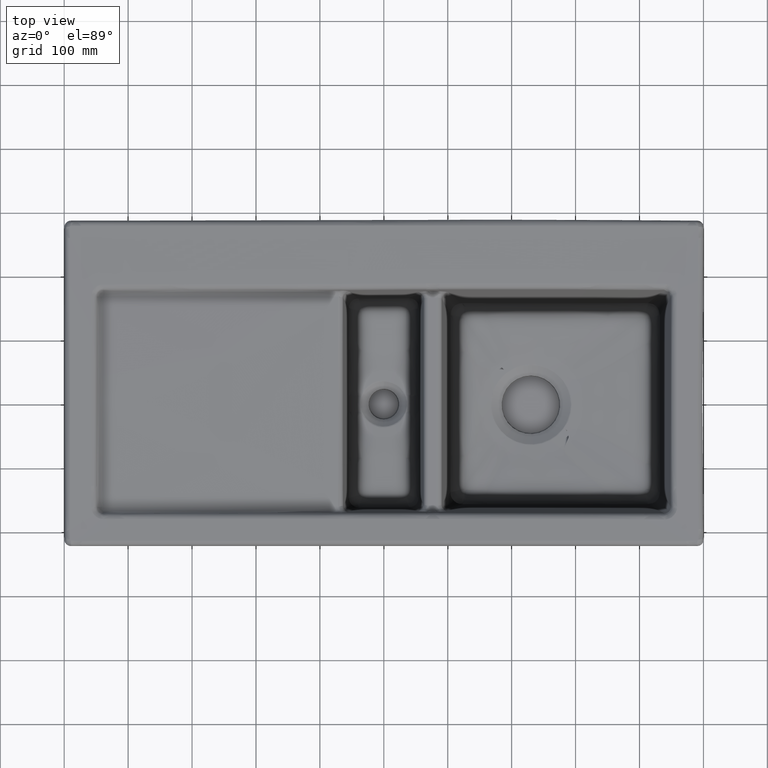
[diagram: clean part render]
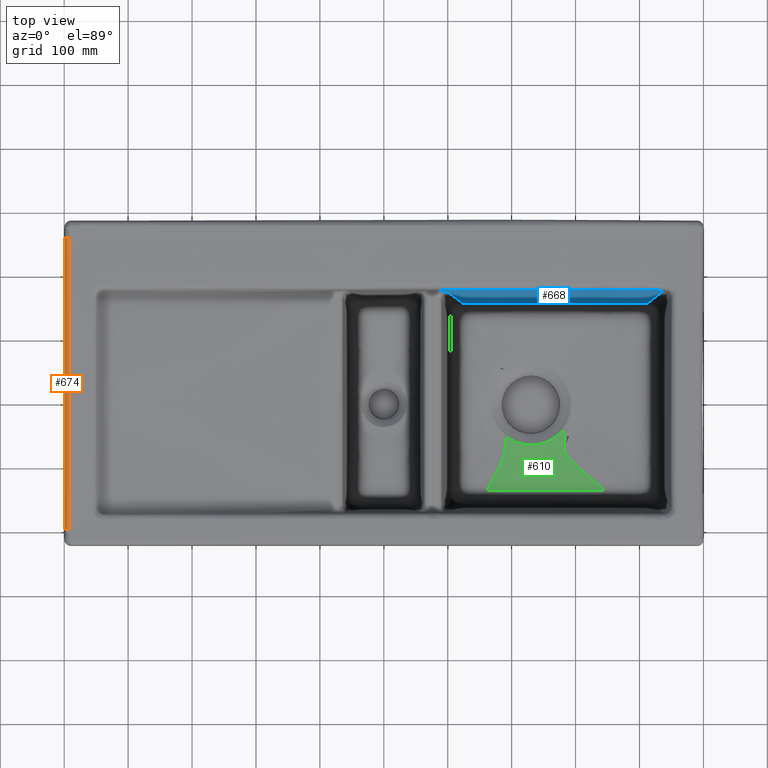
[diagram: same view with three faces highlighted in distinct colors, each labeled with its STEP entity id]
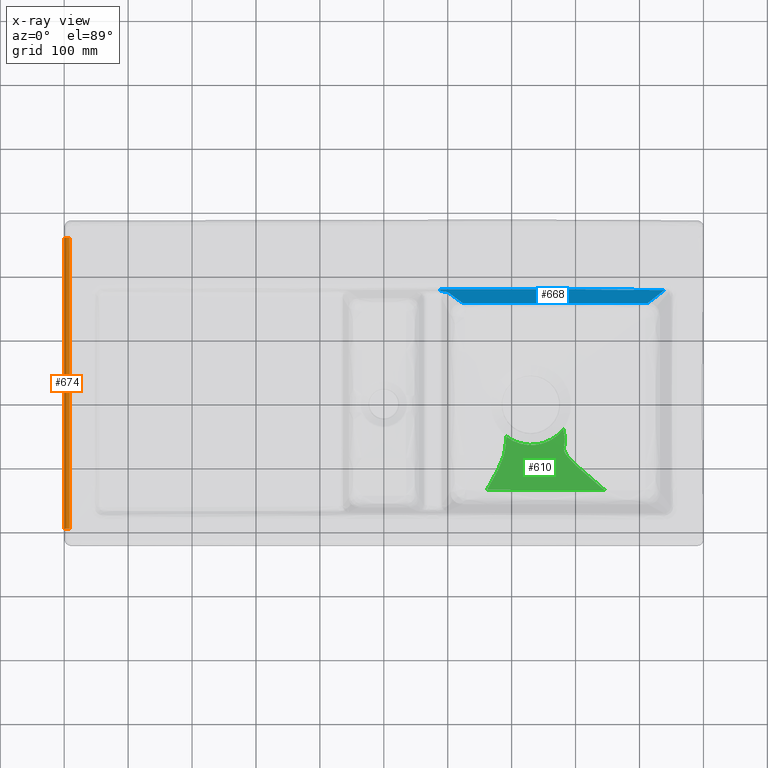
[diagram: x-ray of the same camera — body ghosted, the three highlighted faces saturated]
A machine part, top view with three faces highlighted in distinct colors.
The next image is the same camera in x-ray (body ghosted, the three faces saturated) — at least one of them is partly hidden behind the body in this view.
Their STEP definitions:

[orange] entity #674 — the highlighted face is a freeform B-spline surface patch.
#294=(
BOUNDED_CURVE()
B_SPLINE_CURVE(2,(#12816,#12817,#12818),.UNSPECIFIED.,.F.,.F.)
B_SPLINE_CURVE_WITH_KNOTS((3,3),(0.,1.),.UNSPECIFIED.)
CURVE()
GEOMETRIC_REPRESENTATION_ITEM()
RATIONAL_B_SPLINE_CURVE((1.,0.718519209859785,1.))
REPRESENTATION_ITEM('')
);
#428=(
BOUNDED_SURFACE()
B_SPLINE_SURFACE(3,2,((#12846,#12847,#12848),(#12849,#12850,#12851),(#12852,
#12853,#12854),(#12855,#12856,#12857),(#12858,#12859,#12860),(#12861,#12862,
#12863),(#12864,#12865,#12866),(#12867,#12868,#12869),(#12870,#12871,#12872),
(#12873,#12874,#12875),(#12876,#12877,#12878),(#12879,#12880,#12881),(#12882,
#12883,#12884),(#12885,#12886,#12887),(#12888,#12889,#12890),(#12891,#12892,
#12893),(#12894,#12895,#12896),(#12897,#12898,#12899),(#12900,#12901,#12902),
(#12903,#12904,#12905),(#12906,#12907,#12908),(#12909,#12910,#12911)),
 .UNSPECIFIED.,.F.,.F.,.F.)
B_SPLINE_SURFACE_WITH_KNOTS((4,2,2,2,2,2,2,2,2,2,4),(3,3),(0.,0.124999834745652,
0.187499752118478,0.249999669491304,0.374999504236955,0.499999338982607,
0.749999008473911,0.874998843219562,0.937498760592388,0.999998677965214,
1.),(0.,1.),.UNSPECIFIED.)
GEOMETRIC_REPRESENTATION_ITEM()
RATIONAL_B_SPLINE_SURFACE(((1.,0.718491273654868,1.),(1.,0.718491273654868,
1.),(1.,0.718491326263846,1.),(1.,0.718490963561792,1.),(1.,0.718491325860311,
1.),(1.,0.718492348168477,1.),(1.,0.718492450613231,1.),(1.,0.718492563293483,
1.),(1.,0.718491728544634,1.),(1.,0.718491728544634,1.),(1.,0.718491270514074,
1.),(1.,0.718491504677982,1.),(1.,0.718492081432788,1.),(1.,0.718491710619861,
1.),(1.,0.718492849235308,1.),(1.,0.718492646884107,1.),(1.,0.718491990097577,
1.),(1.,0.718491458207917,1.),(1.,0.71849124643056,1.),(1.,0.71849124643056,
1.),(1.,0.71849124643056,1.),(1.,0.71849124643056,1.)))
REPRESENTATION_ITEM('')
SURFACE()
);
#674=ADVANCED_FACE('',(#1186),#428,.T.);
#1186=FACE_OUTER_BOUND('',#1589,.T.);
#1589=EDGE_LOOP('',(#2332,#2333,#2334,#2335));
#2332=ORIENTED_EDGE('',*,*,#4677,.F.);
#2333=ORIENTED_EDGE('',*,*,#4465,.T.);
#2334=ORIENTED_EDGE('',*,*,#4678,.F.);
#2335=ORIENTED_EDGE('',*,*,#4679,.F.);
#3873=VERTEX_POINT('',#7394);
#3874=VERTEX_POINT('',#7409);
#4004=VERTEX_POINT('',#12819);
#4005=VERTEX_POINT('',#12826);
#4465=EDGE_CURVE('',#3874,#3873,#5435,.T.);
#4677=EDGE_CURVE('',#3874,#4004,#294,.T.);
#4678=EDGE_CURVE('',#4005,#3873,#5578,.T.);
#4679=EDGE_CURVE('',#4004,#4005,#5579,.T.);
#5435=B_SPLINE_CURVE_WITH_KNOTS('',3,(#7395,#7396,#7397,#7398,#7399,#7400,
#7401,#7402,#7403,#7404,#7405,#7406,#7407,#7408),.UNSPECIFIED.,.F.,.F.,
(4,2,2,2,2,2,4),(0.,0.125,0.25,0.5,0.75,0.875,1.),.UNSPECIFIED.);
#5578=B_SPLINE_CURVE_WITH_KNOTS('',3,(#12820,#12821,#12822,#12823,#12824,
#12825),.UNSPECIFIED.,.F.,.F.,(4,2,4),(0.,0.5,1.),.UNSPECIFIED.);
#5579=B_SPLINE_CURVE_WITH_KNOTS('',3,(#12827,#12828,#12829,#12830,#12831,
#12832,#12833,#12834,#12835,#12836,#12837,#12838,#12839,#12840,#12841,#12842,
#12843,#12844,#12845),.UNSPECIFIED.,.F.,.F.,(4,1,1,1,1,1,1,1,1,1,1,1,1,
1,1,1,4),(0.,0.00992673134062024,0.0798412857920444,0.114798563017756,0.149755840243468,
0.184713117469181,0.219670394694893,0.254627671920605,0.289584949146317,
0.359499503597741,0.499328612500589,0.639157721403437,0.778986830306285,
0.848901384757709,0.918815939209134,0.988730493660558,1.),.UNSPECIFIED.);
#7394=CARTESIAN_POINT('',(-499.490523939332,-197.877158029754,-7.74464608588212));
#7395=CARTESIAN_POINT('',(-499.490662644879,257.276879444351,-7.74802082457675));
#7396=CARTESIAN_POINT('',(-499.490557946787,238.310739726053,-7.75052910161486));
#7397=CARTESIAN_POINT('',(-499.490764973003,219.341422631459,-7.78400338763013));
#7398=CARTESIAN_POINT('',(-499.491023584575,181.412094810959,-7.73701500985903));
#7399=CARTESIAN_POINT('',(-499.490853120724,162.453891850324,-7.43309294048505));
#7400=CARTESIAN_POINT('',(-499.489720525783,105.565500300128,-6.36049279736896));
#7401=CARTESIAN_POINT('',(-499.490798906779,67.6313528260689,-5.94151118589915));
#7402=CARTESIAN_POINT('',(-499.490604875534,-8.23436523889592,-5.65615613731529));
#7403=CARTESIAN_POINT('',(-499.490199719775,-46.1656520773044,-5.80172297560583));
#7404=CARTESIAN_POINT('',(-499.490839748835,-103.060344052101,-6.42719146859272));
#7405=CARTESIAN_POINT('',(-499.49025541858,-122.026700742078,-6.7115219189677));
#7406=CARTESIAN_POINT('',(-499.490673220746,-159.952353274149,-7.43478908914426));
#7407=CARTESIAN_POINT('',(-499.490995432697,-178.91127564829,-7.71829056622411));
#7408=CARTESIAN_POINT('',(-499.490869244957,-197.8742849488,-7.75118662538315));
#7409=CARTESIAN_POINT('',(-499.490625882287,257.276879423655,-7.74732115855321));
#12816=CARTESIAN_POINT('',(-499.49061268677,257.277721483377,-7.747069234503));
#12817=CARTESIAN_POINT('',(-499.084523692586,257.276817899981,-0.0136082921561689));
#12818=CARTESIAN_POINT('',(-491.341950609959,257.276881456874,-0.168169981463993));
#12819=CARTESIAN_POINT('',(-491.341824130181,257.276168588387,-0.168738389311537));
#12820=CARTESIAN_POINT('',(-491.346120353617,-197.897216688213,-0.159258375603653));
#12821=CARTESIAN_POINT('',(-493.199948489024,-197.897253830826,-0.123316404977103));
#12822=CARTESIAN_POINT('',(-495.371728723853,-197.895539339374,-0.831471662155751));
#12823=CARTESIAN_POINT('',(-498.53072453324,-197.888570614098,-3.77127183398765));
#12824=CARTESIAN_POINT('',(-499.392958450113,-197.883592089041,-5.88660728800553));
#12825=CARTESIAN_POINT('',(-499.4901882801,-197.879250924587,-7.73822768557968));
#12826=CARTESIAN_POINT('',(-491.344431794745,-197.892950516002,-0.165969092101436));
#12827=CARTESIAN_POINT('',(-491.341551171611,257.276168640151,-0.169130136751979));
#12828=CARTESIAN_POINT('',(-491.341551171609,255.769983929444,-0.169329157814132));
#12829=CARTESIAN_POINT('',(-491.341551171597,243.655652584315,-0.170858635116447));
#12830=CARTESIAN_POINT('',(-491.34155117158,226.237264295744,-0.171454007815632));
#12831=CARTESIAN_POINT('',(-491.341551171571,205.020818796165,-0.191587447653963));
#12832=CARTESIAN_POINT('',(-491.341551171462,189.108646415843,-0.167172879021217));
#12833=CARTESIAN_POINT('',(-491.341551171103,173.197146862428,-0.019574286955598));
#12834=CARTESIAN_POINT('',(-491.341551170822,157.286909367168,0.239443528504221));
#12835=CARTESIAN_POINT('',(-491.341551170822,141.377646873107,0.548070484816735));
#12836=CARTESIAN_POINT('',(-491.341551170894,120.164848013546,0.93002937147622));
#12837=CARTESIAN_POINT('',(-491.341551170861,83.0397479595823,1.44487937968049));
#12838=CARTESIAN_POINT('',(-491.341551170878,30.0002851799723,1.86743018917233));
#12839=CARTESIAN_POINT('',(-491.341551170874,-33.6491884007893,1.84373352476653));
#12840=CARTESIAN_POINT('',(-491.341551170874,-86.6882946847078,1.37915510754914));
#12841=CARTESIAN_POINT('',(-491.341551170874,-129.116557395504,0.763936945797052));
#12842=CARTESIAN_POINT('',(-491.341551170879,-160.93417178035,0.0907467520447583));
#12843=CARTESIAN_POINT('',(-491.341551170857,-183.859513415479,-0.138201382956502));
#12844=CARTESIAN_POINT('',(-491.341551170838,-196.177462703649,-0.169345157878074));
#12845=CARTESIAN_POINT('',(-491.341551170836,-197.887375061552,-0.172310483004435));
#12846=CARTESIAN_POINT('',(-499.490662628943,257.277780321535,-7.7480203072633));
#12847=CARTESIAN_POINT('',(-499.084558434059,257.276759789778,-0.014269913390417));
#12848=CARTESIAN_POINT('',(-491.341701333642,257.276822995878,-0.169127047046826));
#12849=CARTESIAN_POINT('',(-499.490557919071,238.311295082025,-7.75052764939552));
#12850=CARTESIAN_POINT('',(-499.084452941921,238.322888452652,-0.0167765418926636));
#12851=CARTESIAN_POINT('',(-491.341596745907,238.322731468953,-0.171633686905703));
#12852=CARTESIAN_POINT('',(-499.490764951036,219.341632223773,-7.7840035214331));
#12853=CARTESIAN_POINT('',(-499.084658848807,219.314266996593,-0.0502144978587324));
#12854=CARTESIAN_POINT('',(-491.341802937585,219.314669755991,-0.205073285410044));
#12855=CARTESIAN_POINT('',(-499.490958912692,190.894118001235,-7.74876118742037));
#12856=CARTESIAN_POINT('',(-499.084861826923,190.922167317126,-0.0150322486350976));
#12857=CARTESIAN_POINT('',(-491.341997806718,190.921603892876,-0.169888245775146));
#12858=CARTESIAN_POINT('',(-499.49084980718,181.413755585499,-7.68996544144417));
#12859=CARTESIAN_POINT('',(-499.084749948888,181.485591121793,0.0435120188946245));
#12860=CARTESIAN_POINT('',(-491.34189390338,181.483955681021,-0.111331810786969));
#12861=CARTESIAN_POINT('',(-499.490984416219,162.452461183634,-7.43815466287057));
#12862=CARTESIAN_POINT('',(-499.084879404955,162.586022212583,0.294480028626634));
#12863=CARTESIAN_POINT('',(-491.342045803036,162.583421777709,0.139666316879392));
#12864=CARTESIAN_POINT('',(-499.490664303256,152.971493445922,-7.25430658122908));
#12865=CARTESIAN_POINT('',(-499.084562509418,153.120769324063,0.477976062087351));
#12866=CARTESIAN_POINT('',(-491.341732730053,153.118136831941,0.323170342672711));
#12867=CARTESIAN_POINT('',(-499.490098027954,124.526779178611,-6.71799799247075));
#12868=CARTESIAN_POINT('',(-499.083994683825,124.665620497486,1.01448383189293));
#12869=CARTESIAN_POINT('',(-491.341162459665,124.66258865822,0.859681869797598));
#12870=CARTESIAN_POINT('',(-499.490763996072,105.560572584235,-6.43090981116269));
#12871=CARTESIAN_POINT('',(-499.084663386831,105.664189148102,1.30215781869248));
#12872=CARTESIAN_POINT('',(-491.341816441091,105.66217956943,1.14732704076778));
#12873=CARTESIAN_POINT('',(-499.490651565228,67.6290024755083,-6.01227293820713));
#12874=CARTESIAN_POINT('',(-499.084543443847,67.6960837394075,1.72119810588737));
#12875=CARTESIAN_POINT('',(-491.34169607799,67.6947213290928,1.56635221251205));
#12876=CARTESIAN_POINT('',(-499.490750387451,48.6620222745455,-5.87015303653939));
#12877=CARTESIAN_POINT('',(-499.084645507065,48.7103470772913,1.86346692249869));
#12878=CARTESIAN_POINT('',(-491.341791763231,48.7093580239642,1.70861496726945));
#12879=CARTESIAN_POINT('',(-499.490604810924,-8.23830309023901,-5.6561570842841));
#12880=CARTESIAN_POINT('',(-499.084500528167,-8.24768002095946,2.07768514947916));
#12881=CARTESIAN_POINT('',(-491.341641655052,-8.24740202529694,1.92282412677421));
#12882=CARTESIAN_POINT('',(-499.490199673157,-46.1702809985636,-5.80174808642345));
#12883=CARTESIAN_POINT('',(-499.084079894895,-46.2193106138724,1.93191188111168));
#12884=CARTESIAN_POINT('',(-491.341240759052,-46.2183360098821,1.77705829286241));
#12885=CARTESIAN_POINT('',(-499.490839830557,-103.066009566372,-6.4272660459157));
#12886=CARTESIAN_POINT('',(-499.084739723294,-103.169037941273,1.30580954740364));
#12887=CARTESIAN_POINT('',(-491.341892091462,-103.167092511206,1.15097774294627));
#12888=CARTESIAN_POINT('',(-499.490255286595,-122.032712060741,-6.71161887437665));
#12889=CARTESIAN_POINT('',(-499.084146147202,-122.180546672686,1.02068307963497));
#12890=CARTESIAN_POINT('',(-491.341323575703,-122.177388034768,0.865887004438983));
#12891=CARTESIAN_POINT('',(-499.490568909908,-150.477468619334,-7.25410504812292));
#12892=CARTESIAN_POINT('',(-499.084463819101,-150.624759883994,0.478211996837553));
#12893=CARTESIAN_POINT('',(-491.341636749721,-150.622036057781,0.323407335345145));
#12894=CARTESIAN_POINT('',(-499.490937486872,-159.958155384587,-7.43062544525742));
#12895=CARTESIAN_POINT('',(-499.084836925656,-160.081463519683,0.302172262701861));
#12896=CARTESIAN_POINT('',(-491.341995409771,-160.079003058604,0.147353081290356));
#12897=CARTESIAN_POINT('',(-499.4907714596,-178.919664971169,-7.66749604450895));
#12898=CARTESIAN_POINT('',(-499.084668769415,-178.989565881878,0.0659805735961848));
#12899=CARTESIAN_POINT('',(-491.341815672621,-178.988015428412,-0.088864032453197));
#12900=CARTESIAN_POINT('',(-499.490932386302,-188.399999661843,-7.7347771488538));
#12901=CARTESIAN_POINT('',(-499.084829619765,-188.439975112472,-0.0010837748255572));
#12902=CARTESIAN_POINT('',(-491.341972028945,-188.439480123172,-0.155939131894444));
#12903=CARTESIAN_POINT('',(-499.49086917347,-197.881878353643,-7.75119938897164));
#12904=CARTESIAN_POINT('',(-499.084765782721,-197.895270288727,-0.0174598730207946));
#12905=CARTESIAN_POINT('',(-491.341908071285,-197.894950489441,-0.172316473404415));
#12906=CARTESIAN_POINT('',(-499.490869172133,-197.882078915641,-7.75119973633711));
#12907=CARTESIAN_POINT('',(-499.08476578137,-197.895470288427,-0.0174602194102691));
#12908=CARTESIAN_POINT('',(-491.341908069932,-197.895150492846,-0.172316819820188));
#12909=CARTESIAN_POINT('',(-499.490869170796,-197.88227947764,-7.75120008370258));
#12910=CARTESIAN_POINT('',(-499.08476578002,-197.895670288127,-0.0174605657997435));
#12911=CARTESIAN_POINT('',(-491.341908068579,-197.895350496252,-0.172317166235962));

[blue] entity #668 — the highlighted face is a freeform B-spline surface patch.
#668=ADVANCED_FACE('',(#1180),#997,.T.);
#997=B_SPLINE_SURFACE_WITH_KNOTS('',3,1,((#12449,#12450),(#12451,#12452),
(#12453,#12454),(#12455,#12456),(#12457,#12458),(#12459,#12460),(#12461,
#12462),(#12463,#12464),(#12465,#12466),(#12467,#12468),(#12469,#12470),
(#12471,#12472),(#12473,#12474),(#12475,#12476),(#12477,#12478),(#12479,
#12480),(#12481,#12482),(#12483,#12484),(#12485,#12486)),.UNSPECIFIED.,
 .F.,.F.,.F.,(4,1,1,1,1,1,1,1,1,1,1,1,1,1,1,1,4),(2,2),(0.,0.0625,0.125,
0.1875,0.25,0.3125,0.375,0.4375,0.5,0.5625,0.625,0.6875,0.75,0.8125,0.875,
0.9375,1.),(0.,1.),.UNSPECIFIED.);
#1180=FACE_OUTER_BOUND('',#1583,.T.);
#1583=EDGE_LOOP('',(#2298,#2299,#2300,#2301,#2302,#2303,#2304,#2305,#2306));
#2298=ORIENTED_EDGE('',*,*,#4593,.T.);
#2299=ORIENTED_EDGE('',*,*,#4650,.T.);
#2300=ORIENTED_EDGE('',*,*,#4662,.F.);
#2301=ORIENTED_EDGE('',*,*,#4663,.F.);
#2302=ORIENTED_EDGE('',*,*,#4664,.F.);
#2303=ORIENTED_EDGE('',*,*,#4603,.T.);
#2304=ORIENTED_EDGE('',*,*,#4595,.T.);
#2305=ORIENTED_EDGE('',*,*,#4597,.T.);
#2306=ORIENTED_EDGE('',*,*,#4598,.T.);
#3926=VERTEX_POINT('',#9807);
#3929=VERTEX_POINT('',#9971);
#3956=VERTEX_POINT('',#10866);
#3957=VERTEX_POINT('',#10916);
#3958=VERTEX_POINT('',#10942);
#3961=VERTEX_POINT('',#11021);
#3990=VERTEX_POINT('',#12169);
#3996=VERTEX_POINT('',#12395);
#3997=VERTEX_POINT('',#12400);
#4593=EDGE_CURVE('',#3926,#3956,#5511,.T.);
#4595=EDGE_CURVE('',#3929,#3957,#5512,.T.);
#4597=EDGE_CURVE('',#3957,#3958,#5513,.T.);
#4598=EDGE_CURVE('',#3958,#3926,#5514,.T.);
#4603=EDGE_CURVE('',#3961,#3929,#5519,.T.);
#4650=EDGE_CURVE('',#3956,#3990,#5556,.T.);
#4662=EDGE_CURVE('',#3996,#3990,#5564,.T.);
#4663=EDGE_CURVE('',#3997,#3996,#5565,.T.);
#4664=EDGE_CURVE('',#3961,#3997,#5566,.T.);
#5511=B_SPLINE_CURVE_WITH_KNOTS('',3,(#10867,#10868,#10869,#10870),
 .UNSPECIFIED.,.F.,.F.,(4,4),(0.,1.),.UNSPECIFIED.);
#5512=B_SPLINE_CURVE_WITH_KNOTS('',3,(#10917,#10918,#10919,#10920),
 .UNSPECIFIED.,.F.,.F.,(4,4),(0.,1.),.UNSPECIFIED.);
#5513=B_SPLINE_CURVE_WITH_KNOTS('',3,(#10943,#10944,#10945,#10946),
 .UNSPECIFIED.,.F.,.F.,(4,4),(0.,1.),.UNSPECIFIED.);
#5514=B_SPLINE_CURVE_WITH_KNOTS('',3,(#10965,#10966,#10967,#10968),
 .UNSPECIFIED.,.F.,.F.,(4,4),(0.,1.),.UNSPECIFIED.);
#5519=B_SPLINE_CURVE_WITH_KNOTS('',3,(#11022,#11023,#11024,#11025),
 .UNSPECIFIED.,.F.,.F.,(4,4),(0.,1.),.UNSPECIFIED.);
#5556=B_SPLINE_CURVE_WITH_KNOTS('',3,(#12165,#12166,#12167,#12168),
 .UNSPECIFIED.,.F.,.F.,(4,4),(0.,1.),.UNSPECIFIED.);
#5564=B_SPLINE_CURVE_WITH_KNOTS('',3,(#12391,#12392,#12393,#12394),
 .UNSPECIFIED.,.F.,.F.,(4,4),(0.,1.),.UNSPECIFIED.);
#5565=B_SPLINE_CURVE_WITH_KNOTS('',3,(#12396,#12397,#12398,#12399),
 .UNSPECIFIED.,.F.,.F.,(4,4),(0.,1.),.UNSPECIFIED.);
#5566=B_SPLINE_CURVE_WITH_KNOTS('',3,(#12401,#12402,#12403,#12404,#12405,
#12406,#12407,#12408,#12409,#12410,#12411,#12412,#12413,#12414,#12415,#12416,
#12417,#12418,#12419,#12420,#12421,#12422,#12423,#12424,#12425,#12426,#12427,
#12428,#12429,#12430,#12431,#12432,#12433,#12434,#12435,#12436,#12437,#12438,
#12439,#12440,#12441,#12442,#12443,#12444,#12445,#12446,#12447,#12448),
 .UNSPECIFIED.,.F.,.F.,(4,2,2,2,2,2,2,2,2,2,2,2,2,2,2,2,2,2,2,2,2,2,2,4),
(0.,0.124999999999993,0.18749999999999,0.218749999999989,0.249999999999988,
0.281249999999987,0.296874999999986,0.312499999999986,0.374999999999985,
0.406249999999986,0.437499999999986,0.499999999999987,0.562499999999987,
0.593749999999988,0.624999999999989,0.640624999999988,0.656249999999986,
0.687499999999985,0.749999999999984,0.812499999999983,0.843749999999983,
0.859374999999983,0.874999999999982,1.),.UNSPECIFIED.);
#9807=CARTESIAN_POINT('',(413.086523079114,158.501561425455,-173.14523676866));
#9971=CARTESIAN_POINT('',(123.010906751173,158.608113742221,-173.145373030802));
#10866=CARTESIAN_POINT('',(438.77967093676,175.774046914216,-10.1298207856494));
#10867=CARTESIAN_POINT('',(413.084544529992,158.501600718384,-173.144917823408));
#10868=CARTESIAN_POINT('',(420.859853562355,163.611497899342,-125.540985442557));
#10869=CARTESIAN_POINT('',(429.424859438646,169.376703268797,-71.2353139395205));
#10870=CARTESIAN_POINT('',(438.779423652955,175.774050100017,-10.1298147586572));
#10916=CARTESIAN_POINT('',(160.544730773734,158.616306277772,-173.145335691906));
#10917=CARTESIAN_POINT('',(123.010915786735,158.608109030604,-173.145422133927));
#10918=CARTESIAN_POINT('',(135.522188159824,158.611876708313,-173.145463698863));
#10919=CARTESIAN_POINT('',(148.033460313628,158.614610680013,-173.145453957226));
#10920=CARTESIAN_POINT('',(160.544730773734,158.616306277772,-173.145335691906));
#10942=CARTESIAN_POINT('',(350.040070270705,158.560941991251,-173.145304157733));
#10943=CARTESIAN_POINT('',(160.544730773734,158.616306277772,-173.145335691906));
#10944=CARTESIAN_POINT('',(223.709963134361,158.623976414063,-173.152569902232));
#10945=CARTESIAN_POINT('',(286.875206814576,158.60917850267,-173.166978607762));
#10946=CARTESIAN_POINT('',(350.040070270705,158.560941991251,-173.145304157733));
#10965=CARTESIAN_POINT('',(350.040070270705,158.560941991251,-173.145304157733));
#10966=CARTESIAN_POINT('',(371.054952548735,158.543319535149,-173.15229927181));
#10967=CARTESIAN_POINT('',(392.06978016924,158.521671497694,-173.153664168774));
#10968=CARTESIAN_POINT('',(413.084486993694,158.501562878879,-173.145270336811));
#11021=CARTESIAN_POINT('',(100.81876774461,172.815880812839,-47.1632404752883));
#11022=CARTESIAN_POINT('',(100.818767889005,172.815833265383,-47.1632351101825));
#11023=CARTESIAN_POINT('',(108.556834836456,167.943751210028,-90.5497191167642));
#11024=CARTESIAN_POINT('',(115.954121314038,163.204268242665,-132.541735719003));
#11025=CARTESIAN_POINT('',(123.010900043209,158.608119284527,-173.14533154806));
#12165=CARTESIAN_POINT('',(438.779423649165,175.774050097424,-10.1298147834177));
#12166=CARTESIAN_POINT('',(394.34012611865,176.118915928887,-10.7652576563605));
#12167=CARTESIAN_POINT('',(349.894399916262,176.608878358694,-10.8677577410836));
#12168=CARTESIAN_POINT('',(305.448378930031,176.825082614632,-10.8657744673134));
#12169=CARTESIAN_POINT('',(305.448378898183,176.825076428844,-10.8658138527811));
#12391=CARTESIAN_POINT('',(87.0180990452281,176.85517485583,-10.864470908048));
#12392=CARTESIAN_POINT('',(159.828222165262,177.177075186623,-10.8478281816188));
#12393=CARTESIAN_POINT('',(232.641714811181,177.180969260864,-10.8471734297955));
#12394=CARTESIAN_POINT('',(305.448163920574,176.825067489113,-10.8659183660583));
#12395=CARTESIAN_POINT('',(87.018101641561,176.855087493183,-10.8652473979019));
#12396=CARTESIAN_POINT('',(89.280675230933,174.443061073538,-32.3777516894848));
#12397=CARTESIAN_POINT('',(88.526531653918,175.24744188922,-25.2073733651297));
#12398=CARTESIAN_POINT('',(87.7723664283987,176.05145590276,-18.0365350210081));
#12399=CARTESIAN_POINT('',(87.0181796229438,176.855089002086,-10.8652370325287));
#12400=CARTESIAN_POINT('',(89.2806643060453,174.443065585139,-32.3777785230237));
#12401=CARTESIAN_POINT('',(100.818767600283,172.8159283603,-47.1632458403535));
#12402=CARTESIAN_POINT('',(100.687552208763,172.898532695504,-46.427651665652));
#12403=CARTESIAN_POINT('',(100.507794647532,172.985326726639,-45.6535560241946));
#12404=CARTESIAN_POINT('',(100.144708927316,173.120220265831,-44.4479466504638));
#12405=CARTESIAN_POINT('',(100.008093668895,173.165961661294,-44.038725444913));
#12406=CARTESIAN_POINT('',(99.7771216662997,173.23547200674,-43.4161294325813));
#12407=CARTESIAN_POINT('',(99.6957888525566,173.258791302523,-43.2071413085613));
#12408=CARTESIAN_POINT('',(99.5239881200379,173.305677127276,-42.7866874979247));
#12409=CARTESIAN_POINT('',(99.415783357485,173.333649321679,-42.5356626955831));
#12410=CARTESIAN_POINT('',(99.2607323976081,173.372162499914,-42.1898472123784));
#12411=CARTESIAN_POINT('',(99.1615418797645,173.396266932203,-41.9733437554752));
#12412=CARTESIAN_POINT('',(98.9733804809804,173.439294358939,-41.5865208221323));
#12413=CARTESIAN_POINT('',(98.9040689111839,173.454779869471,-41.4472527416099));
#12414=CARTESIAN_POINT('',(98.750783754126,173.487941280977,-41.1488595894025));
#12415=CARTESIAN_POINT('',(98.6477514430312,173.509487273223,-40.9548723867159));
#12416=CARTESIAN_POINT('',(98.2822863475742,173.583696372765,-40.2863891478428));
#12417=CARTESIAN_POINT('',(98.0558692215426,173.62401248986,-39.9222929709993));
#12418=CARTESIAN_POINT('',(97.7678754576026,173.673328821287,-39.4765344337347));
#12419=CARTESIAN_POINT('',(97.6693127152303,173.6896506726,-39.3288946845837));
#12420=CARTESIAN_POINT('',(97.4670581629287,173.722033939511,-39.0357370663962));
#12421=CARTESIAN_POINT('',(97.3838607040427,173.735025197948,-38.9180594979696));
#12422=CARTESIAN_POINT('',(97.0036140498815,173.791988040106,-38.4015181713599));
#12423=CARTESIAN_POINT('',(96.8701620171851,173.81003691275,-38.2373841263699));
#12424=CARTESIAN_POINT('',(96.7410035572003,173.828236171724,-38.0721003523137));
#12425=CARTESIAN_POINT('',(96.5098395309774,173.860263700486,-37.7811066336729));
#12426=CARTESIAN_POINT('',(96.2442897524011,173.894859403645,-37.4662197132144));
#12427=CARTESIAN_POINT('',(96.0603570471314,173.918223083962,-37.253403567667));
#12428=CARTESIAN_POINT('',(95.7699676793528,173.953537531521,-36.9312952482315));
#12429=CARTESIAN_POINT('',(95.6461341252647,173.967999161214,-36.7992155516874));
#12430=CARTESIAN_POINT('',(95.4958607269921,173.985249534599,-36.6415756530582));
#12431=CARTESIAN_POINT('',(95.4516669507623,173.990258085769,-36.5957859490398));
#12432=CARTESIAN_POINT('',(95.3754678111019,173.998834709565,-36.517357528362));
#12433=CARTESIAN_POINT('',(95.2477360511622,174.013054282703,-36.387278075939));
#12434=CARTESIAN_POINT('',(94.9599091018483,174.04417803072,-36.1022673462275));
#12435=CARTESIAN_POINT('',(94.7664742584824,174.064183024173,-35.9187747627981));
#12436=CARTESIAN_POINT('',(94.1828475208059,174.12201413737,-35.3874535862131));
#12437=CARTESIAN_POINT('',(93.7591943708749,174.160168728257,-35.0355278464867));
#12438=CARTESIAN_POINT('',(93.0307602017929,174.220869466166,-34.4736812025571));
#12439=CARTESIAN_POINT('',(92.6807055467312,174.247588101741,-34.2253127772496));
#12440=CARTESIAN_POINT('',(92.1836806977521,174.282988843409,-33.895036771813));
#12441=CARTESIAN_POINT('',(92.0226623545438,174.294009462823,-33.7919910261417));
#12442=CARTESIAN_POINT('',(91.788826886615,174.309466057842,-33.6471780901207));
#12443=CARTESIAN_POINT('',(91.7121629503233,174.314439194004,-33.6005330916341));
#12444=CARTESIAN_POINT('',(91.5615041987019,174.324042864396,-33.5103619627167));
#12445=CARTESIAN_POINT('',(91.4390810584488,174.331652587556,-33.4388022951328));
#12446=CARTESIAN_POINT('',(91.2214391886046,174.345041365631,-33.3128167256033));
#12447=CARTESIAN_POINT('',(90.5425666557624,174.389846207534,-32.8930286320503));
#12448=CARTESIAN_POINT('',(89.280654065724,174.443070075616,-32.3778055676514));
#12449=CARTESIAN_POINT('',(460.314086982089,176.572945141116,-0.805230815662213));
#12450=CARTESIAN_POINT('',(460.086870329034,147.322279068045,-279.115124660644));
#12451=CARTESIAN_POINT('',(440.943555722693,176.681183543919,-1.20701234165405));
#12452=CARTESIAN_POINT('',(440.717321448801,147.255505713675,-279.077397081836));
#12453=CARTESIAN_POINT('',(402.199114005258,177.052886734522,-1.76390130672204));
#12454=CARTESIAN_POINT('',(401.979792312344,147.049902917022,-279.116448035366));
#12455=CARTESIAN_POINT('',(344.077009807356,177.61005993198,-2.1065732779555));
#12456=CARTESIAN_POINT('',(343.876024608475,146.741675855398,-279.403717922992));
#12457=CARTESIAN_POINT('',(285.952825287686,177.915731488996,-2.17887425761232));
#12458=CARTESIAN_POINT('',(285.773222589971,146.550195855267,-279.816494024907));
#12459=CARTESIAN_POINT('',(227.827928842696,178.076202681824,-2.18810585977984));
#12460=CARTESIAN_POINT('',(227.6707510472,146.426117864193,-280.258546931853));
#12461=CARTESIAN_POINT('',(169.702913273013,178.089573411763,-2.18396728224159));
#12462=CARTESIAN_POINT('',(169.568334802112,146.370323907991,-280.706806276218));
#12463=CARTESIAN_POINT('',(111.5780425861,177.9560708668,-2.1713743385185));
#12464=CARTESIAN_POINT('',(111.465851302442,146.382708525999,-281.158990137366));
#12465=CARTESIAN_POINT('',(53.4536264887606,177.682759820874,-2.16292704133931));
#12466=CARTESIAN_POINT('',(53.3631567822915,146.459992250154,-281.609249589388));
#12467=CARTESIAN_POINT('',(-4.66966009630145,177.222033194173,-2.15904997906703));
#12468=CARTESIAN_POINT('',(-4.74006205745782,146.624274286905,-282.057387538367));
#12469=CARTESIAN_POINT('',(-62.7912046820611,176.531991217822,-2.16014306767186));
#12470=CARTESIAN_POINT('',(-62.8440895332833,146.895004508963,-282.503218343309));
#12471=CARTESIAN_POINT('',(-120.916731366915,176.570668151763,-2.15713010309002));
#12472=CARTESIAN_POINT('',(-120.946268518709,146.827463412864,-282.950955178139));
#12473=CARTESIAN_POINT('',(-179.041745746424,176.588377027757,-2.16574795433041));
#12474=CARTESIAN_POINT('',(-179.048685316276,146.769655689264,-283.393292988265));
#12475=CARTESIAN_POINT('',(-237.16662151221,176.586407687223,-2.17984696466794));
#12476=CARTESIAN_POINT('',(-237.151166458334,146.720982593776,-283.833086444339));
#12477=CARTESIAN_POINT('',(-295.29174566104,176.579068180558,-2.1823591207179));
#12478=CARTESIAN_POINT('',(-295.253532300981,146.674802329406,-284.278258518172));
#12479=CARTESIAN_POINT('',(-353.416632813942,176.57950912341,-1.93833193688224));
#12480=CARTESIAN_POINT('',(-353.35600815714,146.62501038037,-284.837874153581));
#12481=CARTESIAN_POINT('',(-411.538101897388,176.579847024763,-1.4576611000454));
#12482=CARTESIAN_POINT('',(-411.460070681139,146.575266263198,-285.507339772712));
#12483=CARTESIAN_POINT('',(-450.288516819341,176.580382349744,-0.977673182316449));
#12484=CARTESIAN_POINT('',(-450.194827056059,146.541959589766,-286.027708975237));
#12485=CARTESIAN_POINT('',(-469.651968331635,176.596388935243,-0.309006939809756));
#12486=CARTESIAN_POINT('',(-469.567662354897,146.518000244989,-286.486883250565));

[green] entity #610 — the highlighted face is a freeform B-spline surface patch.
#610=ADVANCED_FACE('',(#1125),#985,.F.);
#985=B_SPLINE_SURFACE_WITH_KNOTS('',3,1,((#9231,#9232),(#9233,#9234),(#9235,
#9236),(#9237,#9238),(#9239,#9240),(#9241,#9242),(#9243,#9244),(#9245,#9246),
(#9247,#9248),(#9249,#9250),(#9251,#9252),(#9253,#9254),(#9255,#9256),(#9257,
#9258)),.UNSPECIFIED.,.F.,.F.,.F.,(4,1,1,1,1,1,1,1,1,1,1,4),(2,2),(0.,0.0625,
0.125,0.25,0.375,0.4375,0.5,0.5625,0.625,0.75,0.875,1.),(0.,1.),
 .UNSPECIFIED.);
#1125=FACE_OUTER_BOUND('',#1522,.T.);
#1522=EDGE_LOOP('',(#2040,#2041,#2042,#2043));
#2040=ORIENTED_EDGE('',*,*,#4525,.F.);
#2041=ORIENTED_EDGE('',*,*,#4526,.F.);
#2042=ORIENTED_EDGE('',*,*,#4520,.T.);
#2043=ORIENTED_EDGE('',*,*,#4493,.T.);
#3881=VERTEX_POINT('',#7492);
#3883=VERTEX_POINT('',#7514);
#3912=VERTEX_POINT('',#8845);
#3915=VERTEX_POINT('',#9224);
#4493=EDGE_CURVE('',#3881,#3883,#5444,.T.);
#4520=EDGE_CURVE('',#3912,#3881,#5463,.T.);
#4525=EDGE_CURVE('',#3915,#3883,#5467,.T.);
#4526=EDGE_CURVE('',#3912,#3915,#5468,.T.);
#5444=B_SPLINE_CURVE_WITH_KNOTS('',3,(#7859,#7860,#7861,#7862,#7863,#7864,
#7865,#7866,#7867,#7868,#7869,#7870,#7871,#7872,#7873,#7874,#7875,#7876,
#7877,#7878,#7879,#7880,#7881),.UNSPECIFIED.,.F.,.F.,(4,2,2,2,2,1,1,1,2,
2,2,2,4),(0.,0.124999999999987,0.249999999999973,0.37499999999996,0.437499999999953,
0.468749999999948,0.484374999999946,0.492187499999946,0.496093749999945,
0.499999999999945,0.749999999999973,0.874999999999986,1.),.UNSPECIFIED.);
#5463=B_SPLINE_CURVE_WITH_KNOTS('',3,(#8769,#8770,#8771,#8772,#8773,#8774,
#8775,#8776,#8777,#8778,#8779,#8780,#8781,#8782,#8783,#8784,#8785,#8786,
#8787,#8788,#8789,#8790,#8791,#8792,#8793,#8794,#8795,#8796,#8797,#8798,
#8799,#8800,#8801,#8802,#8803,#8804,#8805,#8806,#8807,#8808,#8809,#8810,
#8811,#8812,#8813,#8814,#8815,#8816,#8817,#8818,#8819,#8820,#8821,#8822,
#8823,#8824,#8825,#8826,#8827,#8828,#8829,#8830,#8831,#8832,#8833,#8834,
#8835,#8836,#8837,#8838,#8839,#8840,#8841,#8842,#8843,#8844),
 .UNSPECIFIED.,.F.,.F.,(4,2,2,2,2,2,2,2,2,1,1,1,1,2,2,2,2,2,1,1,2,2,2,2,
2,2,2,2,2,1,2,2,2,2,2,2,2,1,1,1,2,2,4),(0.,0.124999999999993,0.187499999999989,
0.203124999999987,0.218749999999986,0.249999999999983,0.374999999999971,
0.437499999999965,0.468749999999963,0.484374999999961,0.49218749999996,
0.49609374999996,0.49804687499996,0.49902343749996,0.49999999999996,0.562499999999951,
0.593749999999946,0.609374999999943,0.617187499999942,0.621093749999941,
0.623046874999941,0.624999999999941,0.687499999999948,0.718749999999952,
0.734374999999954,0.749999999999956,0.78124999999996,0.796874999999961,
0.804687499999962,0.808593749999962,0.810546874999962,0.812499999999962,
0.843749999999966,0.859374999999968,0.867187499999969,0.87499999999997,
0.906249999999974,0.921874999999976,0.929687499999977,0.933593749999978,
0.935546874999978,0.937499999999979,1.),.UNSPECIFIED.);
#5467=B_SPLINE_CURVE_WITH_KNOTS('',3,(#9107,#9108,#9109,#9110,#9111,#9112,
#9113,#9114,#9115,#9116,#9117,#9118,#9119,#9120,#9121,#9122,#9123,#9124,
#9125,#9126,#9127,#9128,#9129,#9130,#9131,#9132,#9133,#9134,#9135,#9136,
#9137,#9138,#9139,#9140,#9141,#9142,#9143,#9144,#9145,#9146,#9147,#9148,
#9149,#9150,#9151,#9152,#9153,#9154,#9155,#9156,#9157,#9158,#9159,#9160,
#9161,#9162,#9163,#9164,#9165,#9166,#9167,#9168,#9169,#9170,#9171,#9172,
#9173,#9174,#9175,#9176,#9177,#9178,#9179,#9180,#9181,#9182,#9183,#9184,
#9185,#9186,#9187,#9188,#9189,#9190,#9191,#9192,#9193,#9194,#9195,#9196,
#9197,#9198,#9199,#9200,#9201,#9202,#9203,#9204,#9205,#9206,#9207,#9208,
#9209,#9210,#9211,#9212,#9213,#9214,#9215,#9216,#9217,#9218,#9219,#9220,
#9221,#9222,#9223),.UNSPECIFIED.,.F.,.F.,(4,2,2,1,2,2,2,1,1,1,1,2,2,2,2,
2,2,2,2,2,2,2,2,2,2,2,2,1,1,1,1,2,2,2,2,2,2,2,2,2,2,2,2,2,2,2,2,2,2,2,2,
2,2,2,1,2,2,2,2,2,1,2,2,4),(0.,0.0312500000000036,0.0468750000000057,0.0546875000000066,
0.0585937500000069,0.0625000000000073,0.125000000000006,0.187500000000005,
0.218750000000005,0.234375000000004,0.242187500000004,0.246093750000004,
0.250000000000003,0.28125,0.296874999999999,0.312499999999997,0.343749999999993,
0.37499999999999,0.406249999999986,0.437499999999983,0.499999999999975,
0.515624999999974,0.523437499999973,0.527343749999973,0.531249999999973,
0.546874999999972,0.562499999999971,0.593749999999968,0.609374999999967,
0.617187499999967,0.621093749999967,0.623046874999967,0.624999999999967,
0.640624999999968,0.648437499999968,0.656249999999968,0.687499999999968,
0.718749999999968,0.734374999999968,0.742187499999968,0.746093749999969,
0.749999999999969,0.781249999999971,0.796874999999973,0.812499999999974,
0.828124999999976,0.835937499999976,0.843749999999977,0.859374999999978,
0.867187499999979,0.871093749999979,0.874999999999979,0.890624999999983,
0.898437499999984,0.902343749999985,0.904296874999985,0.906249999999985,
0.92187499999999,0.929687499999992,0.933593749999993,0.935546874999994,
0.936523437499994,0.937499999999994,1.),.UNSPECIFIED.);
#5468=B_SPLINE_CURVE_WITH_KNOTS('',3,(#9225,#9226,#9227,#9228,#9229,#9230),
 .UNSPECIFIED.,.F.,.F.,(4,2,4),(0.,0.5,1.),.UNSPECIFIED.);
#7492=CARTESIAN_POINT('',(280.725100562304,-38.6660920345593,-199.787259628847));
#7514=CARTESIAN_POINT('',(191.677616080892,-49.9416345522219,-200.237875035725));
#7859=CARTESIAN_POINT('',(280.724853189796,-38.6664546463647,-199.787244386564));
#7860=CARTESIAN_POINT('',(278.206826301318,-41.9248357187337,-199.79859099194));
#7861=CARTESIAN_POINT('',(275.328924562478,-44.9715844518498,-199.811629736861));
#7862=CARTESIAN_POINT('',(269.066900164991,-50.4163473790299,-199.839971365683));
#7863=CARTESIAN_POINT('',(265.69797756384,-52.8039088950461,-199.855194512353));
#7864=CARTESIAN_POINT('',(258.493592560217,-56.908621952546,-199.887696783449));
#7865=CARTESIAN_POINT('',(254.661439186557,-58.6241503944866,-199.904958549205));
#7866=CARTESIAN_POINT('',(248.75036506494,-60.606237053615,-199.931411888179));
#7867=CARTESIAN_POINT('',(246.752193891755,-61.1687218279581,-199.940326643829));
#7868=CARTESIAN_POINT('',(243.711995037573,-61.865853927215,-199.953850653798));
#7869=CARTESIAN_POINT('',(242.181244589624,-62.1777546091384,-199.960650184617));
#7870=CARTESIAN_POINT('',(240.378708994017,-62.4771822555899,-199.968638258125));
#7871=CARTESIAN_POINT('',(239.473523390304,-62.6107458986665,-199.972644819928));
#7872=CARTESIAN_POINT('',(239.08477365477,-62.6645228544616,-199.974364462863));
#7873=CARTESIAN_POINT('',(238.825429428882,-62.6996038191439,-199.975511441615));
#7874=CARTESIAN_POINT('',(238.640476280017,-62.7238871948399,-199.976329198909));
#7875=CARTESIAN_POINT('',(233.787856921427,-63.3506063643162,-199.997781549833));
#7876=CARTESIAN_POINT('',(227.145600704298,-63.6865383130949,-200.031925638299));
#7877=CARTESIAN_POINT('',(214.83843999412,-61.3943718324849,-200.100299832062));
#7878=CARTESIAN_POINT('',(210.380251993593,-60.1549617410694,-200.125768202763));
#7879=CARTESIAN_POINT('',(201.137961672003,-56.2393497696275,-200.180035628719));
#7880=CARTESIAN_POINT('',(196.324844265894,-53.5460467359417,-200.208986892779));
#7881=CARTESIAN_POINT('',(191.677615943639,-49.9416347562975,-200.237878420812));
#8769=CARTESIAN_POINT('',(345.274247531476,-134.071056728849,-191.488656016963));
#8770=CARTESIAN_POINT('',(341.322835574788,-130.767271240016,-191.835023402542));
#8771=CARTESIAN_POINT('',(337.419693347777,-127.478330611099,-192.181126623086));
#8772=CARTESIAN_POINT('',(331.639563824532,-122.567305688031,-192.699873774475));
#8773=CARTESIAN_POINT('',(329.725284294163,-120.934027899364,-192.872721546741));
#8774=CARTESIAN_POINT('',(327.348197305981,-118.897102505005,-193.08869515311));
#8775=CARTESIAN_POINT('',(326.965780305177,-118.569424326104,-193.123447306787));
#8776=CARTESIAN_POINT('',(325.549209985255,-117.352180848835,-193.252640379477));
#8777=CARTESIAN_POINT('',(324.85475400019,-116.753857398656,-193.31618339253));
#8778=CARTESIAN_POINT('',(322.812235751062,-114.989610825399,-193.503655207712));
#8779=CARTESIAN_POINT('',(321.505015138487,-113.854409011027,-193.62442682812));
#8780=CARTESIAN_POINT('',(315.233184122886,-108.381082525986,-194.207279048343));
#8781=CARTESIAN_POINT('',(311.058854641371,-104.650277613425,-194.606355302106));
#8782=CARTESIAN_POINT('',(305.93871435336,-99.9939745522966,-195.104808469893));
#8783=CARTESIAN_POINT('',(304.422733684215,-98.5986700147163,-195.254263330152));
#8784=CARTESIAN_POINT('',(302.423958548448,-96.7381620881899,-195.453458523972));
#8785=CARTESIAN_POINT('',(301.803597241232,-96.1567424826032,-195.515692242707));
#8786=CARTESIAN_POINT('',(300.940816658635,-95.3424667889146,-195.602801489702));
#8787=CARTESIAN_POINT('',(300.5263696058,-94.9497931117404,-195.644795765243));
#8788=CARTESIAN_POINT('',(300.072292054995,-94.5169346247549,-195.69105956187));
#8789=CARTESIAN_POINT('',(299.852590722272,-94.3068147171826,-195.713509202567));
#8790=CARTESIAN_POINT('',(299.744571534539,-94.2033313798897,-195.72456347363));
#8791=CARTESIAN_POINT('',(299.698669754442,-94.1593191493614,-195.729264473681));
#8792=CARTESIAN_POINT('',(299.668155680627,-94.1300527143401,-195.732390352847));
#8793=CARTESIAN_POINT('',(299.673628594458,-94.1353091795889,-195.731829013082));
#8794=CARTESIAN_POINT('',(297.342966831938,-91.8986379641941,-195.970706464582));
#8795=CARTESIAN_POINT('',(295.331940464581,-89.8964877577593,-196.183752845691));
#8796=CARTESIAN_POINT('',(292.711148731602,-87.1859733199276,-196.470245328245));
#8797=CARTESIAN_POINT('',(291.90362063513,-86.3312805479424,-196.560229391021));
#8798=CARTESIAN_POINT('',(290.788686608803,-85.1217601168088,-196.686949741097));
#8799=CARTESIAN_POINT('',(290.433108493741,-84.7306746591591,-196.727813864382));
#8800=CARTESIAN_POINT('',(289.923559693347,-84.1621049745713,-196.787047535737));
#8801=CARTESIAN_POINT('',(289.674740528174,-83.8823349008839,-196.816148739655));
#8802=CARTESIAN_POINT('',(289.394818367186,-83.5638227465249,-196.849198076097));
#8803=CARTESIAN_POINT('',(289.277067759015,-83.4290059847551,-196.863168805648));
#8804=CARTESIAN_POINT('',(289.19905921253,-83.3395031936692,-196.872439679173));
#8805=CARTESIAN_POINT('',(289.196952522044,-83.3371713429652,-196.872683074008));
#8806=CARTESIAN_POINT('',(286.71652862229,-80.4790926672156,-197.16846408576));
#8807=CARTESIAN_POINT('',(284.94813016886,-78.0092542897681,-197.414710982419));
#8808=CARTESIAN_POINT('',(283.128348582889,-74.7183329494213,-197.723867234584));
#8809=CARTESIAN_POINT('',(282.661490688514,-73.6904575808342,-197.816878740626));
#8810=CARTESIAN_POINT('',(282.163863347886,-72.248552052155,-197.941371562222));
#8811=CARTESIAN_POINT('',(282.031822084487,-71.7845754901979,-197.980364792599));
#8812=CARTESIAN_POINT('',(281.834948891252,-70.8894087487911,-198.05334491123));
#8813=CARTESIAN_POINT('',(281.773402678348,-70.5018949902009,-198.084018536521));
#8814=CARTESIAN_POINT('',(281.669875979518,-69.1257776387071,-198.188409412769));
#8815=CARTESIAN_POINT('',(281.757237709576,-68.0371618856374,-198.264554830867));
#8816=CARTESIAN_POINT('',(282.036354298391,-66.1054652512937,-198.389053950342));
#8817=CARTESIAN_POINT('',(282.153749520572,-65.4115544707874,-198.432268848076));
#8818=CARTESIAN_POINT('',(282.352534745609,-64.2883088091233,-198.499736595375));
#8819=CARTESIAN_POINT('',(282.422556816837,-63.9001480603115,-198.522666858614));
#8820=CARTESIAN_POINT('',(282.531299779933,-63.2962217247052,-198.55773390252));
#8821=CARTESIAN_POINT('',(282.586596599664,-62.9888356750375,-198.575435347887));
#8822=CARTESIAN_POINT('',(282.642899966787,-62.6731006652955,-198.593390679457));
#8823=CARTESIAN_POINT('',(282.680615472095,-62.4607304514136,-198.605417549165));
#8824=CARTESIAN_POINT('',(282.704889426389,-62.3233333647882,-198.613159532485));
#8825=CARTESIAN_POINT('',(282.937611290412,-61.0006327781093,-198.687449096816));
#8826=CARTESIAN_POINT('',(283.102315047209,-59.7260840762446,-198.757308669599));
#8827=CARTESIAN_POINT('',(283.26595713949,-57.7670203606519,-198.862018078529));
#8828=CARTESIAN_POINT('',(283.306603799643,-57.106123652942,-198.89690788165));
#8829=CARTESIAN_POINT('',(283.346472153348,-56.1026253915007,-198.949223901058));
#8830=CARTESIAN_POINT('',(283.356239936937,-55.7661048719822,-198.966659484785));
#8831=CARTESIAN_POINT('',(283.36862204678,-55.0890291639221,-199.001525051104));
#8832=CARTESIAN_POINT('',(283.371147285657,-54.7185236345598,-199.02047870121));
#8833=CARTESIAN_POINT('',(283.366497839439,-53.1554380206065,-199.099997757676));
#8834=CARTESIAN_POINT('',(283.29388660391,-51.8701460214367,-199.16477653989));
#8835=CARTESIAN_POINT('',(283.076115825964,-49.8906784674983,-199.263718957018));
#8836=CARTESIAN_POINT('',(282.940014306344,-48.8880643568885,-199.313633740432));
#8837=CARTESIAN_POINT('',(282.732366073709,-47.6959838750801,-199.372650388493));
#8838=CARTESIAN_POINT('',(282.616169488441,-47.0943765542581,-199.402355218002));
#8839=CARTESIAN_POINT('',(282.563710150133,-46.8353489529498,-199.415128017679));
#8840=CARTESIAN_POINT('',(282.528144985483,-46.6623977442451,-199.423652591167));
#8841=CARTESIAN_POINT('',(282.501231253705,-46.5340829061664,-199.429973412224));
#8842=CARTESIAN_POINT('',(282.186399624558,-45.0479027839635,-199.503161329233));
#8843=CARTESIAN_POINT('',(281.786172603976,-42.5248276894641,-199.620522391034));
#8844=CARTESIAN_POINT('',(280.724853189734,-38.6664546464077,-199.787244386566));
#8845=CARTESIAN_POINT('',(345.326920094303,-134.008640793794,-191.49420542525));
#9107=CARTESIAN_POINT('',(161.489817029305,-133.528003867637,-192.456334106012));
#9108=CARTESIAN_POINT('',(161.764786503254,-133.064342187346,-192.502577237627));
#9109=CARTESIAN_POINT('',(162.120742041704,-132.463284897104,-192.56253450024));
#9110=CARTESIAN_POINT('',(162.774318829612,-131.354551509444,-192.673190513121));
#9111=CARTESIAN_POINT('',(163.012108710351,-130.950443528951,-192.713529969204));
#9112=CARTESIAN_POINT('',(163.398366878382,-130.292299431367,-192.779246269158));
#9113=CARTESIAN_POINT('',(163.598888266427,-129.95023123897,-192.813406277956));
#9114=CARTESIAN_POINT('',(163.810427789933,-129.588627995816,-192.849524685819));
#9115=CARTESIAN_POINT('',(163.953894092599,-129.343213083904,-192.874039501403));
#9116=CARTESIAN_POINT('',(164.047381438362,-129.183156178809,-192.890029171823));
#9117=CARTESIAN_POINT('',(164.959169590888,-127.621202464283,-193.046077296055));
#9118=CARTESIAN_POINT('',(165.825454319333,-126.124264537,-193.195772703411));
#9119=CARTESIAN_POINT('',(167.531011166985,-123.146024906127,-193.493842842428));
#9120=CARTESIAN_POINT('',(168.800449380272,-120.906676087706,-193.718135886104));
#9121=CARTESIAN_POINT('',(170.261278288285,-118.281646648808,-193.981275147982));
#9122=CARTESIAN_POINT('',(170.986252877835,-116.965701279557,-194.113231796653));
#9123=CARTESIAN_POINT('',(171.347330929268,-116.306831351841,-194.179309500234));
#9124=CARTESIAN_POINT('',(171.501771405833,-116.02426201906,-194.207650092748));
#9125=CARTESIAN_POINT('',(171.604662857076,-115.83583832463,-194.226548647144));
#9126=CARTESIAN_POINT('',(171.680665967885,-115.696487887136,-194.240525629599));
#9127=CARTESIAN_POINT('',(171.921728695191,-115.254230575023,-194.284885069319));
#9128=CARTESIAN_POINT('',(172.23417627556,-114.680629052389,-194.342421518298));
#9129=CARTESIAN_POINT('',(172.846277884656,-113.547010227599,-194.456150733011));
#9130=CARTESIAN_POINT('',(173.074189335126,-113.123582941558,-194.498633104303));
#9131=CARTESIAN_POINT('',(173.576760236145,-112.184953135243,-194.592812098388));
#9132=CARTESIAN_POINT('',(173.876777575552,-111.621873675278,-194.649313096256));
#9133=CARTESIAN_POINT('',(174.692868246876,-110.08093825218,-194.803942375371));
#9134=CARTESIAN_POINT('',(175.161371201763,-109.184430680486,-194.893912278075));
#9135=CARTESIAN_POINT('',(175.953261755407,-107.656918418537,-195.047204815777));
#9136=CARTESIAN_POINT('',(176.263126514072,-107.052493078125,-195.10786074588));
#9137=CARTESIAN_POINT('',(176.796582377578,-106.006026048771,-195.212872449215));
#9138=CARTESIAN_POINT('',(177.124127397779,-105.359830287923,-195.277717940394));
#9139=CARTESIAN_POINT('',(177.895590106256,-103.817769530859,-195.432426215678));
#9140=CARTESIAN_POINT('',(178.323497688057,-102.954962275965,-195.518977160425));
#9141=CARTESIAN_POINT('',(179.865150766909,-99.783978117217,-195.836822844272));
#9142=CARTESIAN_POINT('',(180.602651637662,-98.1939284968689,-195.995857607839));
#9143=CARTESIAN_POINT('',(181.172065933415,-96.9538076698706,-196.119783985117));
#9144=CARTESIAN_POINT('',(181.31921995767,-96.632377405986,-196.151898484828));
#9145=CARTESIAN_POINT('',(181.58828227659,-96.0388490949782,-196.211161135198));
#9146=CARTESIAN_POINT('',(181.686016651107,-95.8224356363875,-196.232764340114));
#9147=CARTESIAN_POINT('',(181.844410956309,-95.4697319828716,-196.267959639131));
#9148=CARTESIAN_POINT('',(181.899173920558,-95.3474830119775,-196.280156523111));
#9149=CARTESIAN_POINT('',(182.01257584209,-95.0935785586667,-196.305483806827));
#9150=CARTESIAN_POINT('',(182.084111705437,-94.932872813624,-196.321510848138));
#9151=CARTESIAN_POINT('',(182.322364513378,-94.3962081732156,-196.375022408468));
#9152=CARTESIAN_POINT('',(182.504527925283,-93.981384419885,-196.416356342768));
#9153=CARTESIAN_POINT('',(182.852539432113,-93.1812749141487,-196.49603896231));
#9154=CARTESIAN_POINT('',(183.004790450573,-92.827787819413,-196.531221865358));
#9155=CARTESIAN_POINT('',(183.51892469375,-91.6206919722811,-196.651264688268));
#9156=CARTESIAN_POINT('',(184.024734477905,-90.4065406621144,-196.771807591371));
#9157=CARTESIAN_POINT('',(184.59756651603,-88.9742316999474,-196.913457665793));
#9158=CARTESIAN_POINT('',(184.87932405323,-88.2536961668436,-196.984554541479));
#9159=CARTESIAN_POINT('',(185.018995884909,-87.8922792371982,-197.020173146249));
#9160=CARTESIAN_POINT('',(185.078592079151,-87.7371342438769,-197.03545353476));
#9161=CARTESIAN_POINT('',(185.118263891242,-87.6336476015791,-197.045643880514));
#9162=CARTESIAN_POINT('',(185.148458103346,-87.5546675880711,-197.053418832596));
#9163=CARTESIAN_POINT('',(185.232957952241,-87.3333403110027,-197.07520366491));
#9164=CARTESIAN_POINT('',(185.349529268537,-87.0278079308846,-197.105270009096));
#9165=CARTESIAN_POINT('',(185.583116489886,-86.4029243547088,-197.166623639837));
#9166=CARTESIAN_POINT('',(185.670739629196,-86.1668380248606,-197.189785468693));
#9167=CARTESIAN_POINT('',(185.864557604403,-85.6381327288209,-197.241585246247));
#9168=CARTESIAN_POINT('',(185.984094788795,-85.3081721285468,-197.273871543669));
#9169=CARTESIAN_POINT('',(186.491694265009,-83.8873192883647,-197.41268774213));
#9170=CARTESIAN_POINT('',(186.777876854626,-83.028314825458,-197.495994537654));
#9171=CARTESIAN_POINT('',(187.145709155423,-81.9042999612139,-197.604793214226));
#9172=CARTESIAN_POINT('',(187.430037910983,-81.0236476838469,-197.68997223106));
#9173=CARTESIAN_POINT('',(187.949667439093,-79.2512756363374,-197.859437526104));
#9174=CARTESIAN_POINT('',(188.096117284741,-78.7280839104523,-197.909185450366));
#9175=CARTESIAN_POINT('',(188.280435794701,-78.0499372993917,-197.973425240478));
#9176=CARTESIAN_POINT('',(188.335979121629,-77.841664450197,-197.993108362219));
#9177=CARTESIAN_POINT('',(188.410985254441,-77.5565443310296,-198.020007524424));
#9178=CARTESIAN_POINT('',(188.434601887556,-77.4660519920014,-198.028536359422));
#9179=CARTESIAN_POINT('',(188.479145282526,-77.2942592021458,-198.044714344412));
#9180=CARTESIAN_POINT('',(188.490350219689,-77.2509458776346,-198.048792112601));
#9181=CARTESIAN_POINT('',(188.754418786597,-76.2191259804211,-198.145799325418));
#9182=CARTESIAN_POINT('',(188.975080621096,-75.2848651964577,-198.232826176037));
#9183=CARTESIAN_POINT('',(189.280870511923,-73.8503395586768,-198.364789769784));
#9184=CARTESIAN_POINT('',(189.37857487241,-73.3665364956377,-198.409015803689));
#9185=CARTESIAN_POINT('',(189.564827669828,-72.3860608463187,-198.497980240561));
#9186=CARTESIAN_POINT('',(189.616641540447,-72.0955335656829,-198.52415492227));
#9187=CARTESIAN_POINT('',(189.768090996121,-71.2016095041972,-198.604220291717));
#9188=CARTESIAN_POINT('',(189.851298403656,-70.6804186225592,-198.650620797881));
#9189=CARTESIAN_POINT('',(189.981362677895,-69.7768073846731,-198.730089722138));
#9190=CARTESIAN_POINT('',(190.025593486223,-69.4552718606936,-198.758223745092));
#9191=CARTESIAN_POINT('',(190.114773943768,-68.7693329153855,-198.817832200239));
#9192=CARTESIAN_POINT('',(190.142905387239,-68.5398797335051,-198.837631904684));
#9193=CARTESIAN_POINT('',(190.238578920798,-67.7422212456284,-198.906226115797));
#9194=CARTESIAN_POINT('',(190.295833535797,-67.2354184216657,-198.949525156396));
#9195=CARTESIAN_POINT('',(190.411005434392,-66.1164400618803,-199.043566680516));
#9196=CARTESIAN_POINT('',(190.441982025316,-65.8007823710313,-199.069870884019));
#9197=CARTESIAN_POINT('',(190.479072269537,-65.4175043441011,-199.101686539668));
#9198=CARTESIAN_POINT('',(190.489855199978,-65.3047572405874,-199.111019375805));
#9199=CARTESIAN_POINT('',(190.508370046322,-65.1097090633254,-199.127137888883));
#9200=CARTESIAN_POINT('',(190.510959609215,-65.0825245851496,-199.129384361845));
#9201=CARTESIAN_POINT('',(190.567888577135,-64.4723332149464,-199.179637878978));
#9202=CARTESIAN_POINT('',(190.615313254793,-63.9400169798012,-199.223076742748));
#9203=CARTESIAN_POINT('',(190.689300938192,-63.0710831501029,-199.293046717616));
#9204=CARTESIAN_POINT('',(190.714408492746,-62.7696514991865,-199.317174279314));
#9205=CARTESIAN_POINT('',(190.75275166965,-62.2991591021022,-199.354562067978));
#9206=CARTESIAN_POINT('',(190.772093937439,-62.0593253872283,-199.373555026488));
#9207=CARTESIAN_POINT('',(190.791697153096,-61.8124737480915,-199.392994264214));
#9208=CARTESIAN_POINT('',(190.80482467747,-61.646330394933,-199.406052637445));
#9209=CARTESIAN_POINT('',(190.807351690174,-61.6144450585428,-199.40856206061));
#9210=CARTESIAN_POINT('',(190.903552303717,-60.3847798334464,-199.504836182504));
#9211=CARTESIAN_POINT('',(190.967485889594,-59.5162077945432,-199.570742135345));
#9212=CARTESIAN_POINT('',(191.034973356358,-58.5899832791986,-199.640316837336));
#9213=CARTESIAN_POINT('',(191.052668914726,-58.3438396416039,-199.658628037811));
#9214=CARTESIAN_POINT('',(191.072205325935,-58.071673031638,-199.678812974675));
#9215=CARTESIAN_POINT('',(191.077546373409,-57.9971070446681,-199.684327684948));
#9216=CARTESIAN_POINT('',(191.083806854005,-57.9097250207276,-199.690783324295));
#9217=CARTESIAN_POINT('',(191.086499212488,-57.8721491138282,-199.693557018758));
#9218=CARTESIAN_POINT('',(191.088535119971,-57.8437748844502,-199.695650065514));
#9219=CARTESIAN_POINT('',(191.089746531605,-57.8269057766599,-199.696894218162));
#9220=CARTESIAN_POINT('',(191.087922023675,-57.8522326170873,-199.695026877036));
#9221=CARTESIAN_POINT('',(191.271036253122,-55.3091535195399,-199.882532156879));
#9222=CARTESIAN_POINT('',(191.454077268457,-52.6791467158321,-200.064435892052));
#9223=CARTESIAN_POINT('',(191.677616216949,-49.9416343496812,-200.237871650492));
#9224=CARTESIAN_POINT('',(161.444295058087,-133.50126810464,-192.458946467428));
#9225=CARTESIAN_POINT('',(345.326884953377,-134.115065500897,-191.484042233493));
#9226=CARTESIAN_POINT('',(314.679910287833,-134.03001993167,-191.644811687498));
#9227=CARTESIAN_POINT('',(284.032873241322,-133.944974188679,-191.805581468815));
#9228=CARTESIAN_POINT('',(222.738670689172,-133.774882348006,-192.127121705128));
#9229=CARTESIAN_POINT('',(192.091505175234,-133.689836247304,-192.287892160491));
#9230=CARTESIAN_POINT('',(161.444273454536,-133.60478996596,-192.448662962844));
#9231=CARTESIAN_POINT('',(506.390731816399,-206.660363605521,-184.639042780224));
#9232=CARTESIAN_POINT('',(280.483241035915,-37.8039975329703,-199.824312385077));
#9233=CARTESIAN_POINT('',(496.993433960658,-205.395663180895,-184.688339601925));
#9234=CARTESIAN_POINT('',(279.235246428081,-39.4520314821938,-199.830859178474));
#9235=CARTESIAN_POINT('',(478.325594933564,-202.954000991939,-184.786268298683));
#9236=CARTESIAN_POINT('',(276.570248299898,-42.6311145002471,-199.844839360795));
#9237=CARTESIAN_POINT('',(441.495115642905,-198.446506305723,-184.979475494901));
#9238=CARTESIAN_POINT('',(270.566653692159,-48.4881742807587,-199.876333321834));
#9239=CARTESIAN_POINT('',(396.126462088986,-193.772695695166,-185.217472678699));
#9240=CARTESIAN_POINT('',(262.169566353279,-54.5287553434481,-199.920383188432));
#9241=CARTESIAN_POINT('',(351.628972575055,-190.382112076163,-185.450899865985));
#9242=CARTESIAN_POINT('',(252.610926961082,-58.8583670840647,-199.970526383712));
#9243=CARTESIAN_POINT('',(316.269106940813,-188.574438568157,-185.636392442482));
#9244=CARTESIAN_POINT('',(244.646514144786,-61.1156652936299,-200.012306504379));
#9245=CARTESIAN_POINT('',(289.871391540807,-187.669492080755,-185.774870916742));
#9246=CARTESIAN_POINT('',(238.510292764997,-62.2075607593346,-200.044496205696));
#9247=CARTESIAN_POINT('',(263.567100140866,-187.220228298896,-185.912859302641));
#9248=CARTESIAN_POINT('',(232.249506051789,-62.6918792843138,-200.077339358161));
#9249=CARTESIAN_POINT('',(228.423545670433,-187.245319783213,-186.097217143052));
#9250=CARTESIAN_POINT('',(223.996678350416,-62.5054908374486,-200.120632460275));
#9251=CARTESIAN_POINT('',(184.502096676757,-188.442992275484,-186.327622507733));
#9252=CARTESIAN_POINT('',(213.669984931212,-60.7174277630335,-200.174804752362));
#9253=CARTESIAN_POINT('',(131.215066058701,-191.659525318166,-186.607158315479));
#9254=CARTESIAN_POINT('',(202.053008595694,-56.1993173377927,-200.235745676028));
#9255=CARTESIAN_POINT('',(95.1669723904283,-194.929682820006,-186.796261233469));
#9256=CARTESIAN_POINT('',(195.006233158106,-51.6861742008966,-200.272712008038));
#9257=CARTESIAN_POINT('',(76.9454230177129,-196.80116924952,-186.891848761296));
#9258=CARTESIAN_POINT('',(191.746182157417,-49.114392394323,-200.289813748933));